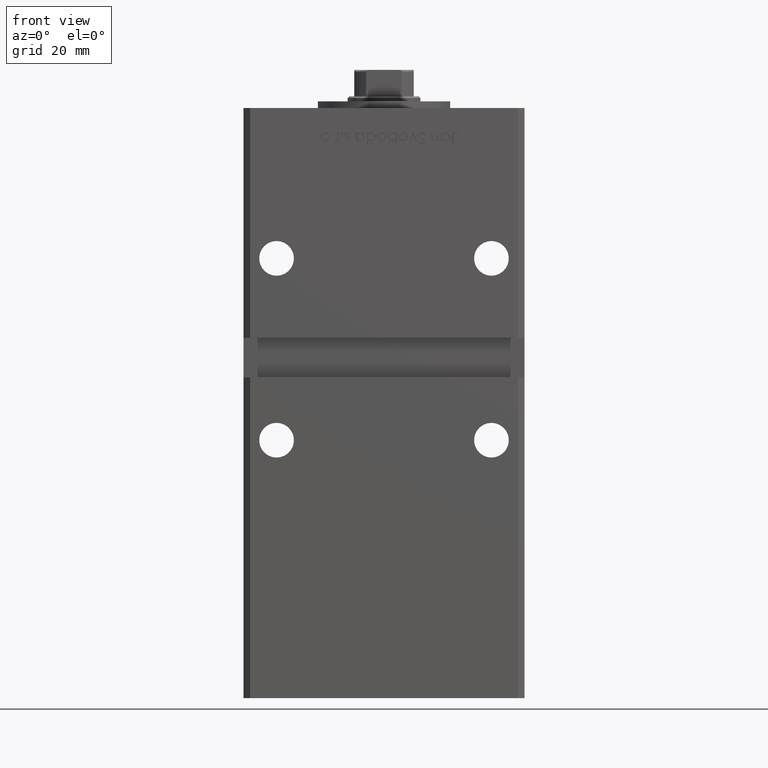
[diagram: clean part render]
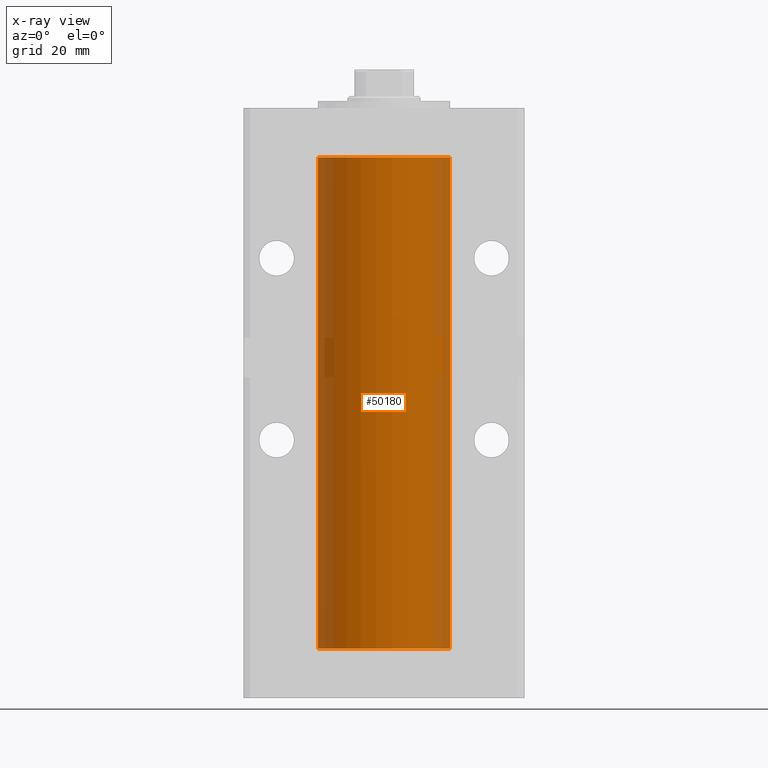
[diagram: x-ray — body ghosted, one internal face saturated and labeled with its STEP entity id]
A machine part, front view, then the same camera in x-ray: the body is ghosted and one INTERNAL B-rep face — a face not visible from any outside direction — is saturated and labeled: STEP entity #50180.
In plain terms, the highlighted cylindrical surface (partial cylindrical patch) has radius 20 mm, axis along (-0, -0, -1).
Its self-contained STEP definition (entity closure, byte-faithful):
#447 = DIRECTION ( 'NONE',  ( -0.000000000000000000, 0.000000000000000000, 1.000000000000000000 ) ) ;
#3170 = EDGE_CURVE ( 'NONE', #7796, #22458, #40147, .T. ) ;
#4252 = EDGE_CURVE ( 'NONE', #30208, #37919, #47067, .T. ) ;
#6481 = LINE ( 'NONE', #14822, #12469 ) ;
#7396 = DIRECTION ( 'NONE',  ( 1.000000000000000000, 0.000000000000000000, 0.000000000000000000 ) ) ;
#7796 = VERTEX_POINT ( 'NONE', #35422 ) ;
#8773 = CARTESIAN_POINT ( 'NONE',  ( -20.00000000000000000, 0.000000000000000000, 148.5000000000000000 ) ) ;
#12469 = VECTOR ( 'NONE', #39546, 1000.000000000000000 ) ;
#12546 = CARTESIAN_POINT ( 'NONE',  ( 0.000000000000000000, 0.000000000000000000, 148.5000000000000000 ) ) ;
#14742 = AXIS2_PLACEMENT_3D ( 'NONE', #44896, #48418, #44638 ) ;
#14822 = CARTESIAN_POINT ( 'NONE',  ( -20.00000000000000000, 0.000000000000000000, 148.5000000000000000 ) ) ;
#15252 = AXIS2_PLACEMENT_3D ( 'NONE', #47734, #44487, #7396 ) ;
#17413 = CARTESIAN_POINT ( 'NONE',  ( 20.00000000000000000, 2.449293598294706513E-15, 148.5000000000000000 ) ) ;
#17942 = LINE ( 'NONE', #18212, #36905 ) ;
#18212 = CARTESIAN_POINT ( 'NONE',  ( 20.00000000000000000, 2.449293598294706513E-15, 148.5000000000000000 ) ) ;
#22230 = DIRECTION ( 'NONE',  ( -0.000000000000000000, -0.000000000000000000, -1.000000000000000000 ) ) ;
#22248 = CARTESIAN_POINT ( 'NONE',  ( 20.00000000000000000, 2.449293598294706513E-15, 0.000000000000000000 ) ) ;
#22458 = VERTEX_POINT ( 'NONE', #22248 ) ;
#23039 = EDGE_CURVE ( 'NONE', #30208, #7796, #6481, .T. ) ;
#23190 = ORIENTED_EDGE ( 'NONE', *, *, #46554, .T. ) ;
#27964 = FACE_OUTER_BOUND ( 'NONE', #29129, .T. ) ;
#29129 = EDGE_LOOP ( 'NONE', ( #32316, #23190, #49761, #52054 ) ) ;
#30208 = VERTEX_POINT ( 'NONE', #8773 ) ;
#32316 = ORIENTED_EDGE ( 'NONE', *, *, #4252, .T. ) ;
#35422 = CARTESIAN_POINT ( 'NONE',  ( -20.00000000000000000, 0.000000000000000000, 0.000000000000000000 ) ) ;
#36905 = VECTOR ( 'NONE', #22230, 1000.000000000000000 ) ;
#37624 = AXIS2_PLACEMENT_3D ( 'NONE', #12546, #447, #49628 ) ;
#37919 = VERTEX_POINT ( 'NONE', #17413 ) ;
#39546 = DIRECTION ( 'NONE',  ( -0.000000000000000000, -0.000000000000000000, -1.000000000000000000 ) ) ;
#40147 = CIRCLE ( 'NONE', #15252, 20.00000000000000000 ) ;
#44487 = DIRECTION ( 'NONE',  ( -0.000000000000000000, 0.000000000000000000, 1.000000000000000000 ) ) ;
#44638 = DIRECTION ( 'NONE',  ( -1.000000000000000000, 0.000000000000000000, 0.000000000000000000 ) ) ;
#44896 = CARTESIAN_POINT ( 'NONE',  ( 0.000000000000000000, 0.000000000000000000, 148.5000000000000000 ) ) ;
#46554 = EDGE_CURVE ( 'NONE', #37919, #22458, #17942, .T. ) ;
#47067 = CIRCLE ( 'NONE', #37624, 20.00000000000000000 ) ;
#47734 = CARTESIAN_POINT ( 'NONE',  ( 0.000000000000000000, 0.000000000000000000, 0.000000000000000000 ) ) ;
#48418 = DIRECTION ( 'NONE',  ( -0.000000000000000000, -0.000000000000000000, -1.000000000000000000 ) ) ;
#48671 = CYLINDRICAL_SURFACE ( 'NONE', #14742, 20.00000000000000000 ) ;
#49628 = DIRECTION ( 'NONE',  ( 1.000000000000000000, 0.000000000000000000, 0.000000000000000000 ) ) ;
#49761 = ORIENTED_EDGE ( 'NONE', *, *, #3170, .F. ) ;
#50180 = ADVANCED_FACE ( 'NONE', ( #27964 ), #48671, .F. ) ;
#52054 = ORIENTED_EDGE ( 'NONE', *, *, #23039, .F. ) ;